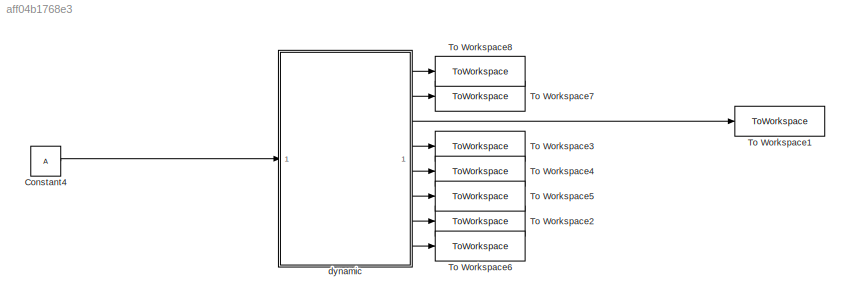
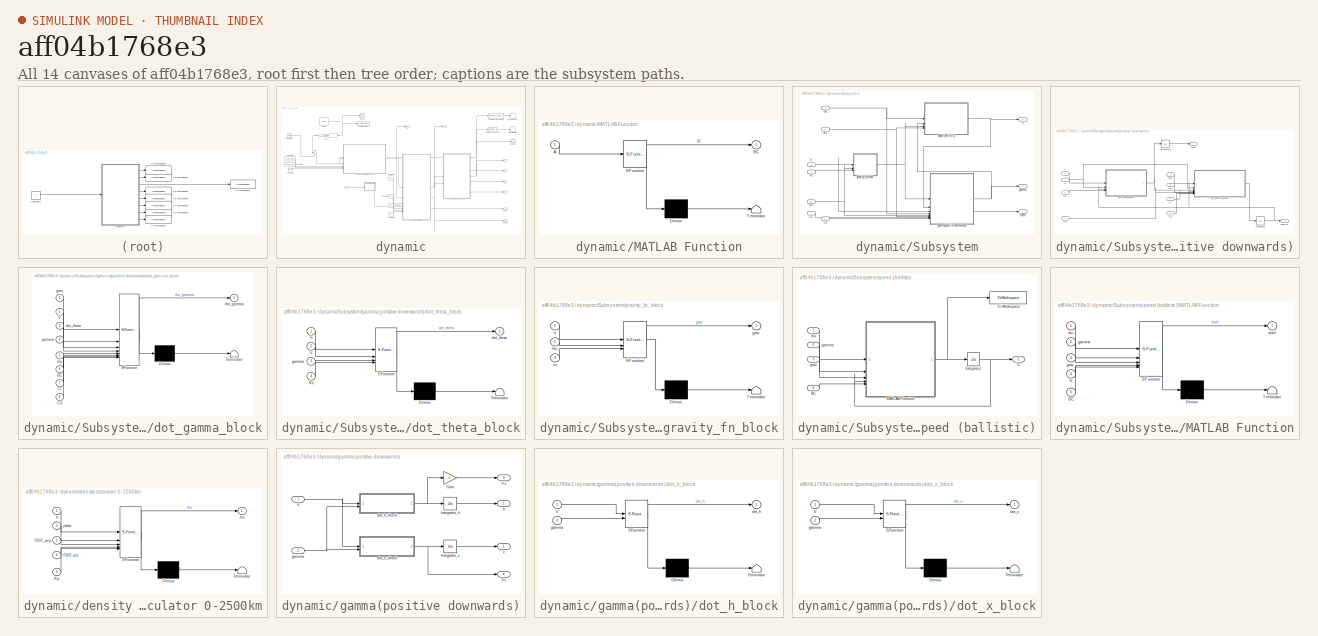
[diagram: thumbnail index - all 14 canvases of the model, root first then tree order]
MODEL slx_aff04b1768e3
KIND model
CONFIG AbsTol = auto
CONFIG EnableMultiTasking = off
CONFIG FixedStep = auto
CONFIG MaxStep = auto
CONFIG MinStep = auto
CONFIG RelTol = 1e-3
CONFIG SampleTimeConstraint = Unconstrained
CONFIG SolverName = VariableStepAuto
CONFIG StartTime = 0.0
CONFIG StopTime = 1e6
BLOCK [Constant] Constant4
  Value = A
BLOCK [ToWorkspace] To Workspace1
  FixptAsFi = on
  MaxDataPoints = inf
  SampleTime = -1
  Save2DSignal = 2-D array (concatenate along first dimension)
  VariableName = h
BLOCK [ToWorkspace] To Workspace2
  FixptAsFi = on
  MaxDataPoints = inf
  SampleTime = -1
  Save2DSignal = 2-D array (concatenate along first dimension)
  VariableName = theta
BLOCK [ToWorkspace] To Workspace3
  FixptAsFi = on
  MaxDataPoints = inf
  SampleTime = -1
  VariableName = x
BLOCK [ToWorkspace] To Workspace4
  FixptAsFi = on
  MaxDataPoints = inf
  SampleTime = -1
  Save2DSignal = 2-D array (concatenate along first dimension)
  VariableName = Vz
BLOCK [ToWorkspace] To Workspace5
  FixptAsFi = on
  MaxDataPoints = inf
  SampleTime = -1
  Save2DSignal = 2-D array (concatenate along first dimension)
  VariableName = Vx
BLOCK [ToWorkspace] To Workspace6
  FixptAsFi = on
  MaxDataPoints = inf
  SampleTime = -1
  Save2DSignal = 2-D array (concatenate along first dimension)
  VariableName = gamma
BLOCK [ToWorkspace] To Workspace7
  FixptAsFi = on
  MaxDataPoints = inf
  SampleTime = -1
  Save2DSignal = 2-D array (concatenate along first dimension)
  VariableName = V
BLOCK [ToWorkspace] To Workspace8
  FixptAsFi = on
  MaxDataPoints = inf
  SampleTime = -1
  Save2DSignal = 2-D array (concatenate along first dimension)
  VariableName = rho
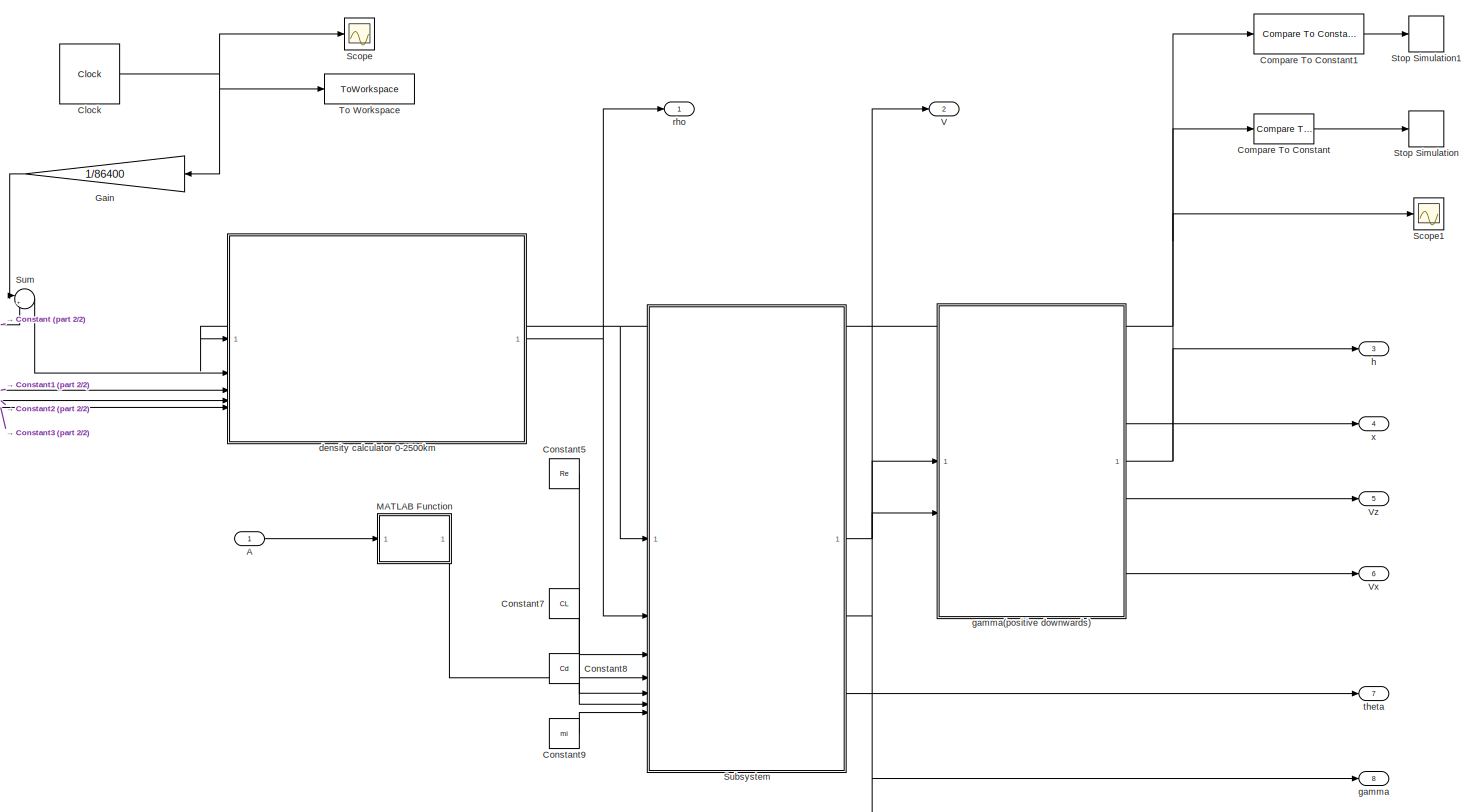
[diagram: dynamic - part 1/2, most of the canvas]
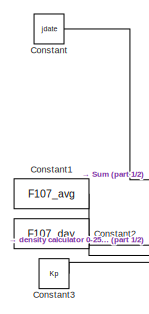
[diagram: dynamic - part 2/2, middle left region]
BLOCK [SubSystem] dynamic
BLOCK [Inport] dynamic/A
BLOCK [Clock] dynamic/Clock
  DisplayTime = on
BLOCK [Reference] dynamic/Compare To Constant  REF=simulink/Logic and Bit
Operations/Compare
To Constant
  SourceBlock = simulink/Logic and Bit\nOperations/Compare\nTo Constant
  SourceType = Compare To Constant
BLOCK [Reference] dynamic/Compare To Constant1  REF=simulink/Logic and Bit
Operations/Compare
To Constant
  SourceBlock = simulink/Logic and Bit\nOperations/Compare\nTo Constant
  SourceType = Compare To Constant
BLOCK [Constant] dynamic/Constant
  Value = jdate
BLOCK [Constant] dynamic/Constant1
  Value = F107_avg
BLOCK [Constant] dynamic/Constant2
  Value = F107_day
BLOCK [Constant] dynamic/Constant3
  Value = Kp
BLOCK [Constant] dynamic/Constant5
  Value = Re
BLOCK [Constant] dynamic/Constant7
  Value = CL
BLOCK [Constant] dynamic/Constant8
  Value = Cd
BLOCK [Constant] dynamic/Constant9
  Value = mi
BLOCK [Gain] dynamic/Gain
  Gain = 1/86400
  NameLocation = top
BLOCK [SubSystem] dynamic/MATLAB Function
  ErrorFcn = Stateflow.Translate.translate
  LibrarySourceBlock = simulink/User-Defined\nFunctions/MATLAB Function
  PermitHierarchicalResolution = ExplicitOnly
  SFBlockType = MATLAB Function
  TreatAsAtomicUnit = on
BLOCK [Demux] dynamic/MATLAB Function/ Demux 
  Outputs = 1
BLOCK [S-Function] dynamic/MATLAB Function/ SFunction 
  EnableBusSupport = on
  FunctionName = sf_sfun
  PortCounts = [1 2]
  SFcnIsStateOwnerBlock = off
  SFunctionDeploymentMode = off
  Tag = Stateflow S-Function 8
BLOCK [Terminator] dynamic/MATLAB Function/ Terminator 
BLOCK [Inport] dynamic/MATLAB Function/A
BLOCK [Outport] dynamic/MATLAB Function/BC
BLOCK [Scope] dynamic/Scope
  Floating = off
  NumInputPorts = 1
  ScopeSpecificationString = Simulink.scopes.TimeScopeBlockCfg('CurrentConfiguration', extmgr.ConfigurationSet(extmgr.Configuration('Core','General UI',true),extmgr.Configuration('Core','Source UI',true),extmgr.Configuration('Sources','WiredSimulink',true),extmgr.Configuration('Visuals','Time Domain',true,'SerializedDisplays',{struct('MinYLimReal','-1.25','MaxYLimReal','11.25','YLabelReal','','MinYLimMag','0.00000','MaxYLimMa...<+1311ch>
BLOCK [Scope] dynamic/Scope1
  Floating = off
  NumInputPorts = 1
  ScopeSpecificationString = Simulink.scopes.TimeScopeBlockCfg('CurrentConfiguration', extmgr.ConfigurationSet(extmgr.Configuration('Core','General UI',true),extmgr.Configuration('Core','Source UI',true),extmgr.Configuration('Sources','WiredSimulink',true,'DataLoggingVariableName','ScopeData1'),extmgr.Configuration('Visuals','Time Domain',true,'SerializedDisplays',{struct('MinYLimReal','164045.69091','MaxYLimReal','181859.815...<+1453ch>
BLOCK [Stop] dynamic/Stop Simulation
BLOCK [Stop] dynamic/Stop Simulation1
BLOCK [SubSystem] dynamic/Subsystem
BLOCK [Inport] dynamic/Subsystem/BC
  Port = 4
BLOCK [Inport] dynamic/Subsystem/CL
  Port = 5
BLOCK [Inport] dynamic/Subsystem/Cd
  Port = 6
BLOCK [Inport] dynamic/Subsystem/Re
  Port = 3
BLOCK [Outport] dynamic/Subsystem/V
BLOCK [Outport] dynamic/Subsystem/gamma
  Port = 2
BLOCK [SubSystem] dynamic/Subsystem/gamma(positive downwards)
BLOCK [Inport] dynamic/Subsystem/gamma(positive downwards)/BC
  Port = 6
BLOCK [Inport] dynamic/Subsystem/gamma(positive downwards)/CL
  Port = 7
BLOCK [Inport] dynamic/Subsystem/gamma(positive downwards)/Cd
  Port = 8
BLOCK [Integrator] dynamic/Subsystem/gamma(positive downwards)/Integrator
  AbsoluteTolerance = 1e-6
  InitialCondition = gamma0
  ZeroCross = off
BLOCK [Integrator] dynamic/Subsystem/gamma(positive downwards)/Integrator1
  InitialCondition = theta0
BLOCK [Inport] dynamic/Subsystem/gamma(positive downwards)/Re
  Port = 5
BLOCK [Inport] dynamic/Subsystem/gamma(positive downwards)/V
  Port = 2
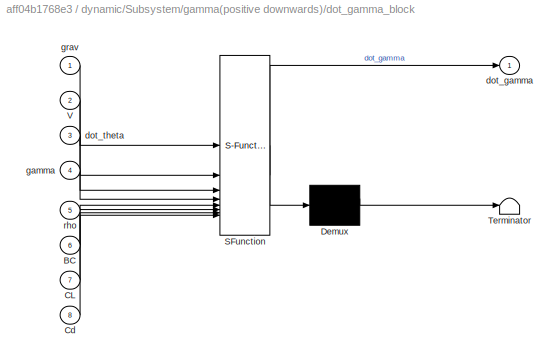
BLOCK [SubSystem] dynamic/Subsystem/gamma(positive downwards)/dot_gamma_block
  ErrorFcn = Stateflow.Translate.translate
  LibrarySourceBlock = simulink/User-Defined\nFunctions/MATLAB Function
  PermitHierarchicalResolution = ExplicitOnly
  SFBlockType = MATLAB Function
  TreatAsAtomicUnit = on
BLOCK [Demux] dynamic/Subsystem/gamma(positive downwards)/dot_gamma_block/ Demux 
  Outputs = 1
BLOCK [S-Function] dynamic/Subsystem/gamma(positive downwards)/dot_gamma_block/ SFunction 
  EnableBusSupport = on
  FunctionName = sf_sfun
  PortCounts = [8 2]
  SFcnIsStateOwnerBlock = off
  SFunctionDeploymentMode = off
  Tag = Stateflow S-Function 5
BLOCK [Terminator] dynamic/Subsystem/gamma(positive downwards)/dot_gamma_block/ Terminator 
BLOCK [Inport] dynamic/Subsystem/gamma(positive downwards)/dot_gamma_block/BC
  Port = 6
BLOCK [Inport] dynamic/Subsystem/gamma(positive downwards)/dot_gamma_block/CL
  Port = 7
BLOCK [Inport] dynamic/Subsystem/gamma(positive downwards)/dot_gamma_block/Cd
  Port = 8
BLOCK [Inport] dynamic/Subsystem/gamma(positive downwards)/dot_gamma_block/V
  Port = 2
BLOCK [Outport] dynamic/Subsystem/gamma(positive downwards)/dot_gamma_block/dot_gamma
BLOCK [Inport] dynamic/Subsystem/gamma(positive downwards)/dot_gamma_block/dot_theta
  Port = 3
BLOCK [Inport] dynamic/Subsystem/gamma(positive downwards)/dot_gamma_block/gamma
  Port = 4
BLOCK [Inport] dynamic/Subsystem/gamma(positive downwards)/dot_gamma_block/grav
BLOCK [Inport] dynamic/Subsystem/gamma(positive downwards)/dot_gamma_block/rho
  Port = 5
BLOCK [SubSystem] dynamic/Subsystem/gamma(positive downwards)/dot_theta_block
  ErrorFcn = Stateflow.Translate.translate
  LibrarySourceBlock = simulink/User-Defined\nFunctions/MATLAB Function
  PermitHierarchicalResolution = ExplicitOnly
  SFBlockType = MATLAB Function
  TreatAsAtomicUnit = on
BLOCK [Demux] dynamic/Subsystem/gamma(positive downwards)/dot_theta_block/ Demux 
  Outputs = 1
BLOCK [S-Function] dynamic/Subsystem/gamma(positive downwards)/dot_theta_block/ SFunction 
  EnableBusSupport = on
  FunctionName = sf_sfun
  PortCounts = [4 2]
  SFcnIsStateOwnerBlock = off
  SFunctionDeploymentMode = off
  Tag = Stateflow S-Function 4
BLOCK [Terminator] dynamic/Subsystem/gamma(positive downwards)/dot_theta_block/ Terminator 
BLOCK [Inport] dynamic/Subsystem/gamma(positive downwards)/dot_theta_block/Re
  Port = 4
BLOCK [Inport] dynamic/Subsystem/gamma(positive downwards)/dot_theta_block/V
  Port = 2
BLOCK [Outport] dynamic/Subsystem/gamma(positive downwards)/dot_theta_block/dot_theta
BLOCK [Inport] dynamic/Subsystem/gamma(positive downwards)/dot_theta_block/gamma
  Port = 3
BLOCK [Inport] dynamic/Subsystem/gamma(positive downwards)/dot_theta_block/h
BLOCK [Outport] dynamic/Subsystem/gamma(positive downwards)/gamma
BLOCK [Inport] dynamic/Subsystem/gamma(positive downwards)/grav
BLOCK [Inport] dynamic/Subsystem/gamma(positive downwards)/h
  Port = 3
BLOCK [Inport] dynamic/Subsystem/gamma(positive downwards)/rho
  Port = 4
BLOCK [Outport] dynamic/Subsystem/gamma(positive downwards)/theta
  Port = 2
BLOCK [SubSystem] dynamic/Subsystem/gravity_fn_block
  ErrorFcn = Stateflow.Translate.translate
  LibrarySourceBlock = simulink/User-Defined\nFunctions/MATLAB Function
  PermitHierarchicalResolution = ExplicitOnly
  SFBlockType = MATLAB Function
  TreatAsAtomicUnit = on
BLOCK [Demux] dynamic/Subsystem/gravity_fn_block/ Demux 
  Outputs = 1
BLOCK [S-Function] dynamic/Subsystem/gravity_fn_block/ SFunction 
  EnableBusSupport = on
  FunctionName = sf_sfun
  PortCounts = [3 2]
  SFcnIsStateOwnerBlock = off
  SFunctionDeploymentMode = off
  Tag = Stateflow S-Function 1
BLOCK [Terminator] dynamic/Subsystem/gravity_fn_block/ Terminator 
BLOCK [Inport] dynamic/Subsystem/gravity_fn_block/Re
  Port = 2
BLOCK [Outport] dynamic/Subsystem/gravity_fn_block/grav
BLOCK [Inport] dynamic/Subsystem/gravity_fn_block/h
BLOCK [Inport] dynamic/Subsystem/gravity_fn_block/mi
  Port = 3
BLOCK [Inport] dynamic/Subsystem/h
BLOCK [Inport] dynamic/Subsystem/mi
  Port = 7
BLOCK [Inport] dynamic/Subsystem/rho
  Port = 2
BLOCK [SubSystem] dynamic/Subsystem/speed (ballistic)
BLOCK [Inport] dynamic/Subsystem/speed (ballistic)/BC
  Port = 4
BLOCK [Integrator] dynamic/Subsystem/speed (ballistic)/Integrator
  InitialCondition = V0
BLOCK [SubSystem] dynamic/Subsystem/speed (ballistic)/MATLAB Function
  ErrorFcn = Stateflow.Translate.translate
  LibrarySourceBlock = simulink/User-Defined\nFunctions/MATLAB Function
  PermitHierarchicalResolution = ExplicitOnly
  SFBlockType = MATLAB Function
  TreatAsAtomicUnit = on
BLOCK [Demux] dynamic/Subsystem/speed (ballistic)/MATLAB Function/ Demux 
  Outputs = 1
BLOCK [S-Function] dynamic/Subsystem/speed (ballistic)/MATLAB Function/ SFunction 
  EnableBusSupport = on
  FunctionName = sf_sfun
  PortCounts = [5 2]
  SFcnIsStateOwnerBlock = off
  SFunctionDeploymentMode = off
  Tag = Stateflow S-Function 3
BLOCK [Terminator] dynamic/Subsystem/speed (ballistic)/MATLAB Function/ Terminator 
BLOCK [Inport] dynamic/Subsystem/speed (ballistic)/MATLAB Function/BC
  Port = 5
BLOCK [Inport] dynamic/Subsystem/speed (ballistic)/MATLAB Function/V
  Port = 4
BLOCK [Outport] dynamic/Subsystem/speed (ballistic)/MATLAB Function/dotV
BLOCK [Inport] dynamic/Subsystem/speed (ballistic)/MATLAB Function/gamma
  Port = 2
BLOCK [Inport] dynamic/Subsystem/speed (ballistic)/MATLAB Function/grav
  Port = 3
BLOCK [Inport] dynamic/Subsystem/speed (ballistic)/MATLAB Function/rho
BLOCK [ToWorkspace] dynamic/Subsystem/speed (ballistic)/To Workspace
  FixptAsFi = on
  MaxDataPoints = inf
  SampleTime = -1
  Save2DSignal = 2-D array (concatenate along first dimension)
  VariableName = dotV
BLOCK [Outport] dynamic/Subsystem/speed (ballistic)/V
BLOCK [Inport] dynamic/Subsystem/speed (ballistic)/gamma
  Port = 2
BLOCK [Inport] dynamic/Subsystem/speed (ballistic)/grav
  Port = 3
BLOCK [Inport] dynamic/Subsystem/speed (ballistic)/rho
BLOCK [Outport] dynamic/Subsystem/theta
  Port = 3
BLOCK [Sum] dynamic/Sum
  Inputs = |++
BLOCK [ToWorkspace] dynamic/To Workspace
  FixptAsFi = on
  MaxDataPoints = inf
  SampleTime = -1
  Save2DSignal = 2-D array (concatenate along first dimension)
  VariableName = time
BLOCK [Outport] dynamic/V
  Port = 2
BLOCK [Outport] dynamic/Vx
  Port = 6
BLOCK [Outport] dynamic/Vz
  Port = 5
BLOCK [SubSystem] dynamic/density calculator 0-2500km
  ErrorFcn = Stateflow.Translate.translate
  LibrarySourceBlock = simulink/User-Defined\nFunctions/MATLAB Function
  PermitHierarchicalResolution = ExplicitOnly
  SFBlockType = MATLAB Function
  TreatAsAtomicUnit = on
BLOCK [Demux] dynamic/density calculator 0-2500km/ Demux 
  Outputs = 1
BLOCK [S-Function] dynamic/density calculator 0-2500km/ SFunction 
  EnableBusSupport = on
  FunctionName = sf_sfun
  PortCounts = [5 2]
  SFcnIsStateOwnerBlock = off
  SFunctionDeploymentMode = off
  Tag = Stateflow S-Function 2
BLOCK [Terminator] dynamic/density calculator 0-2500km/ Terminator 
BLOCK [Inport] dynamic/density calculator 0-2500km/F107_act
  Port = 4
BLOCK [Inport] dynamic/density calculator 0-2500km/F107_avg
  Port = 3
BLOCK [Inport] dynamic/density calculator 0-2500km/Kp
  Port = 5
BLOCK [Inport] dynamic/density calculator 0-2500km/h
BLOCK [Inport] dynamic/density calculator 0-2500km/jdate
  Port = 2
BLOCK [Outport] dynamic/density calculator 0-2500km/rho
BLOCK [Outport] dynamic/gamma
  Port = 8
BLOCK [SubSystem] dynamic/gamma(positive downwards)
BLOCK [Gain] dynamic/gamma(positive downwards)/Gain
  Gain = -1
BLOCK [Integrator] dynamic/gamma(positive downwards)/Integrator_h
  InitialCondition = h0
BLOCK [Integrator] dynamic/gamma(positive downwards)/Integrator_x
  InitialCondition = x0
BLOCK [Inport] dynamic/gamma(positive downwards)/V
BLOCK [Outport] dynamic/gamma(positive downwards)/Vx
  Port = 4
BLOCK [Outport] dynamic/gamma(positive downwards)/Vz
  Port = 3
BLOCK [SubSystem] dynamic/gamma(positive downwards)/dot_h_block
  ErrorFcn = Stateflow.Translate.translate
  LibrarySourceBlock = simulink/User-Defined\nFunctions/MATLAB Function
  PermitHierarchicalResolution = ExplicitOnly
  SFBlockType = MATLAB Function
  TreatAsAtomicUnit = on
BLOCK [Demux] dynamic/gamma(positive downwards)/dot_h_block/ Demux 
  Outputs = 1
BLOCK [S-Function] dynamic/gamma(positive downwards)/dot_h_block/ SFunction 
  EnableBusSupport = on
  FunctionName = sf_sfun
  PortCounts = [2 2]
  SFcnIsStateOwnerBlock = off
  SFunctionDeploymentMode = off
  Tag = Stateflow S-Function 6
BLOCK [Terminator] dynamic/gamma(positive downwards)/dot_h_block/ Terminator 
BLOCK [Inport] dynamic/gamma(positive downwards)/dot_h_block/V
BLOCK [Outport] dynamic/gamma(positive downwards)/dot_h_block/dot_h
BLOCK [Inport] dynamic/gamma(positive downwards)/dot_h_block/gamma
  Port = 2
BLOCK [SubSystem] dynamic/gamma(positive downwards)/dot_x_block
  ErrorFcn = Stateflow.Translate.translate
  LibrarySourceBlock = simulink/User-Defined\nFunctions/MATLAB Function
  PermitHierarchicalResolution = ExplicitOnly
  SFBlockType = MATLAB Function
  TreatAsAtomicUnit = on
BLOCK [Demux] dynamic/gamma(positive downwards)/dot_x_block/ Demux 
  Outputs = 1
BLOCK [S-Function] dynamic/gamma(positive downwards)/dot_x_block/ SFunction 
  EnableBusSupport = on
  FunctionName = sf_sfun
  PortCounts = [2 2]
  SFcnIsStateOwnerBlock = off
  SFunctionDeploymentMode = off
  Tag = Stateflow S-Function 7
BLOCK [Terminator] dynamic/gamma(positive downwards)/dot_x_block/ Terminator 
BLOCK [Inport] dynamic/gamma(positive downwards)/dot_x_block/V
BLOCK [Outport] dynamic/gamma(positive downwards)/dot_x_block/dot_x
BLOCK [Inport] dynamic/gamma(positive downwards)/dot_x_block/gamma
  Port = 2
BLOCK [Inport] dynamic/gamma(positive downwards)/gamma
  Port = 2
BLOCK [Outport] dynamic/gamma(positive downwards)/h
BLOCK [Outport] dynamic/gamma(positive downwards)/x
  Port = 2
BLOCK [Outport] dynamic/h
  Port = 3
BLOCK [Outport] dynamic/rho
BLOCK [Outport] dynamic/theta
  Port = 7
BLOCK [Outport] dynamic/x
  Port = 4
LINE Constant4:1 -> dynamic:1
LINE dynamic/A:1 -> dynamic/MATLAB Function:1
NET dynamic/Clock:1 -> dynamic/Gain:1, dynamic/Scope:1, dynamic/To Workspace:1
LINE dynamic/Compare To Constant1:1 -> dynamic/Stop Simulation1:1
LINE dynamic/Compare To Constant:1 -> dynamic/Stop Simulation:1
LINE dynamic/Constant1:1 -> dynamic/density calculator 0-2500km:3
LINE dynamic/Constant2:1 -> dynamic/density calculator 0-2500km:4
LINE dynamic/Constant3:1 -> dynamic/density calculator 0-2500km:5
LINE dynamic/Constant5:1 -> dynamic/Subsystem:3
LINE dynamic/Constant7:1 -> dynamic/Subsystem:5
LINE dynamic/Constant8:1 -> dynamic/Subsystem:6
LINE dynamic/Constant9:1 -> dynamic/Subsystem:7
LINE dynamic/Constant:1 -> dynamic/Sum:2
LINE dynamic/Gain:1 -> dynamic/Sum:1
LINE dynamic/MATLAB Function:1 -> dynamic/Subsystem:4
NET dynamic/Subsystem/BC:1 -> dynamic/Subsystem/gamma(positive downwards):6, dynamic/Subsystem/speed (ballistic):4
LINE dynamic/Subsystem/CL:1 -> dynamic/Subsystem/gamma(positive downwards):7
LINE dynamic/Subsystem/Cd:1 -> dynamic/Subsystem/gamma(positive downwards):8
NET dynamic/Subsystem/Re:1 -> dynamic/Subsystem/gamma(positive downwards):5, dynamic/Subsystem/gravity_fn_block:2
LINE dynamic/Subsystem/gamma(positive downwards)/BC:1 -> dynamic/Subsystem/gamma(positive downwards)/dot_gamma_block:6
LINE dynamic/Subsystem/gamma(positive downwards)/CL:1 -> dynamic/Subsystem/gamma(positive downwards)/dot_gamma_block:7
LINE dynamic/Subsystem/gamma(positive downwards)/Cd:1 -> dynamic/Subsystem/gamma(positive downwards)/dot_gamma_block:8
LINE dynamic/Subsystem/gamma(positive downwards)/Integrator1:1 -> dynamic/Subsystem/gamma(positive downwards)/theta:1
NET dynamic/Subsystem/gamma(positive downwards)/Integrator:1 -> dynamic/Subsystem/gamma(positive downwards)/dot_gamma_block:4, dynamic/Subsystem/gamma(positive downwards)/dot_theta_block:3, dynamic/Subsystem/gamma(positive downwards)/gamma:1
LINE dynamic/Subsystem/gamma(positive downwards)/Re:1 -> dynamic/Subsystem/gamma(positive downwards)/dot_theta_block:4
NET dynamic/Subsystem/gamma(positive downwards)/V:1 -> dynamic/Subsystem/gamma(positive downwards)/dot_gamma_block:2, dynamic/Subsystem/gamma(positive downwards)/dot_theta_block:2
LINE dynamic/Subsystem/gamma(positive downwards)/dot_gamma_block:1 -> dynamic/Subsystem/gamma(positive downwards)/Integrator:1
NET dynamic/Subsystem/gamma(positive downwards)/dot_theta_block:1 -> dynamic/Subsystem/gamma(positive downwards)/Integrator1:1, dynamic/Subsystem/gamma(positive downwards)/dot_gamma_block:3
LINE dynamic/Subsystem/gamma(positive downwards)/grav:1 -> dynamic/Subsystem/gamma(positive downwards)/dot_gamma_block:1
LINE dynamic/Subsystem/gamma(positive downwards)/h:1 -> dynamic/Subsystem/gamma(positive downwards)/dot_theta_block:1
LINE dynamic/Subsystem/gamma(positive downwards)/rho:1 -> dynamic/Subsystem/gamma(positive downwards)/dot_gamma_block:5
NET dynamic/Subsystem/gamma(positive downwards):1 -> dynamic/Subsystem/gamma:1, dynamic/Subsystem/speed (ballistic):2
LINE dynamic/Subsystem/gamma(positive downwards):2 -> dynamic/Subsystem/theta:1
NET dynamic/Subsystem/gravity_fn_block:1 -> dynamic/Subsystem/gamma(positive downwards):1, dynamic/Subsystem/speed (ballistic):3
NET dynamic/Subsystem/h:1 -> dynamic/Subsystem/gamma(positive downwards):3, dynamic/Subsystem/gravity_fn_block:1
LINE dynamic/Subsystem/mi:1 -> dynamic/Subsystem/gravity_fn_block:3
NET dynamic/Subsystem/rho:1 -> dynamic/Subsystem/gamma(positive downwards):4, dynamic/Subsystem/speed (ballistic):1
LINE dynamic/Subsystem/speed (ballistic)/BC:1 -> dynamic/Subsystem/speed (ballistic)/MATLAB Function:5
NET dynamic/Subsystem/speed (ballistic)/Integrator:1 -> dynamic/Subsystem/speed (ballistic)/MATLAB Function:4, dynamic/Subsystem/speed (ballistic)/V:1
NET dynamic/Subsystem/speed (ballistic)/MATLAB Function:1 -> dynamic/Subsystem/speed (ballistic)/Integrator:1, dynamic/Subsystem/speed (ballistic)/To Workspace:1
LINE dynamic/Subsystem/speed (ballistic)/gamma:1 -> dynamic/Subsystem/speed (ballistic)/MATLAB Function:2
LINE dynamic/Subsystem/speed (ballistic)/grav:1 -> dynamic/Subsystem/speed (ballistic)/MATLAB Function:3
LINE dynamic/Subsystem/speed (ballistic)/rho:1 -> dynamic/Subsystem/speed (ballistic)/MATLAB Function:1
NET dynamic/Subsystem/speed (ballistic):1 -> dynamic/Subsystem/V:1, dynamic/Subsystem/gamma(positive downwards):2
NET dynamic/Subsystem:1 -> dynamic/V:1, dynamic/gamma(positive downwards):1
NET dynamic/Subsystem:2 -> dynamic/gamma(positive downwards):2, dynamic/gamma:1
LINE dynamic/Subsystem:3 -> dynamic/theta:1
LINE dynamic/Sum:1 -> dynamic/density calculator 0-2500km:2
NET dynamic/density calculator 0-2500km:1 -> dynamic/Subsystem:2, dynamic/rho:1
LINE dynamic/gamma(positive downwards)/Gain:1 -> dynamic/gamma(positive downwards)/Vz:1
LINE dynamic/gamma(positive downwards)/Integrator_h:1 -> dynamic/gamma(positive downwards)/h:1
LINE dynamic/gamma(positive downwards)/Integrator_x:1 -> dynamic/gamma(positive downwards)/x:1
NET dynamic/gamma(positive downwards)/V:1 -> dynamic/gamma(positive downwards)/dot_h_block:1, dynamic/gamma(positive downwards)/dot_x_block:1
NET dynamic/gamma(positive downwards)/dot_h_block:1 -> dynamic/gamma(positive downwards)/Gain:1, dynamic/gamma(positive downwards)/Integrator_h:1
NET dynamic/gamma(positive downwards)/dot_x_block:1 -> dynamic/gamma(positive downwards)/Integrator_x:1, dynamic/gamma(positive downwards)/Vx:1
NET dynamic/gamma(positive downwards)/gamma:1 -> dynamic/gamma(positive downwards)/dot_h_block:2, dynamic/gamma(positive downwards)/dot_x_block:2
NET dynamic/gamma(positive downwards):1 -> dynamic/Compare To Constant1:1, dynamic/Compare To Constant:1, dynamic/Scope1:1, dynamic/Subsystem:1, dynamic/density calculator 0-2500km:1, dynamic/h:1
LINE dynamic/gamma(positive downwards):2 -> dynamic/x:1
LINE dynamic/gamma(positive downwards):3 -> dynamic/Vz:1
LINE dynamic/gamma(positive downwards):4 -> dynamic/Vx:1
LINE dynamic:1 -> To Workspace8:1
LINE dynamic:2 -> To Workspace7:1
LINE dynamic:3 -> To Workspace1:1
LINE dynamic:4 -> To Workspace3:1
LINE dynamic:5 -> To Workspace4:1
LINE dynamic:6 -> To Workspace5:1
LINE dynamic:7 -> To Workspace2:1
LINE dynamic:8 -> To Workspace6:1
note: NET lines group one-source signal fan-out (src -> all destinations, sorted); 1:1 wires keep LINE
CHART dynamic/Subsystem/gravity_fn_block states=1 transitions=1
  STATE_LABEL 'eML_blk_kernel()'
  STATE_LABEL 'SCRIPT:\nfunction grav = gravity(h,Re,mi)\n\ngrav = mi*1e9 / (Re+h)^2;\nend\n\n'
CHART dynamic/density calculator 0-2500km states=1 transitions=1
  STATE_LABEL 'eML_blk_kernel()'
  STATE_LABEL 'SCRIPT:\nfunction rho = unirho(h,jdate,F107_avg,F107_act,Kp)\n    SH = 8397.5; \n    rho = 1.225 * exp(- h/(SH));    % my Python model, using SH = 8.43 and rho0=1.221 as constant\nend\n% %This function combines Jacchia J71 and Exponential Atmosphere for %calculating density in the band [0;2500] km\n% %A transition function should be introduced to avoid discontinuities\n% function rho = unirho(h,jdate,F10...<+3608ch>'
CHART dynamic/Subsystem/speed (ballistic)/MATLAB Function states=1 transitions=1
  STATE_LABEL 'eML_blk_kernel()'
  STATE_LABEL 'SCRIPT:\nfunction dotV = dvdt(rho,gamma,grav,V,BC)\ndotV = -0.5*rho*V^2/BC + grav*sin(gamma);\nend\n\n\n'
CHART dynamic/Subsystem/gamma(positive downwards)/dot_theta_block states=1 transitions=1
  STATE_LABEL 'eML_blk_kernel()'
  STATE_LABEL 'SCRIPT:\nfunction dot_theta = dthetadt(h,V,gamma,Re)\n\n\ndot_theta = V*cos(gamma)/(Re+h); \n\nend\n\n'
CHART dynamic/Subsystem/gamma(positive downwards)/dot_gamma_block states=1 transitions=1
  STATE_LABEL 'eML_blk_kernel()'
  STATE_LABEL 'SCRIPT:\nfunction dot_gamma = dgammadt(grav,V,dot_theta,gamma,rho,BC,CL,Cd)\n dot_gamma = grav / V * cos(gamma) - dot_theta - 0.5 * rho/BC * CL / Cd*V; \nend\n\n'
CHART dynamic/gamma(positive downwards)/dot_h_block states=1 transitions=1
  STATE_LABEL 'eML_blk_kernel()'
  STATE_LABEL 'SCRIPT:\nfunction dot_h = dhdt(V,gamma)\ndot_h = -V*sin(gamma);\nend\n\n'
CHART dynamic/gamma(positive downwards)/dot_x_block states=1 transitions=1
  STATE_LABEL 'eML_blk_kernel()'
  STATE_LABEL 'SCRIPT:\nfunction dot_x = dxdt(V,gamma)\ndot_x = -V*cos(gamma);\nend\n\n'
CHART dynamic/MATLAB Function states=1 transitions=1
  STATE_LABEL 'eML_blk_kernel()'
  STATE_LABEL 'SCRIPT:\nfunction BC = ballistic(A)\n         m = 6; \n         Cd = 2.2; \n         BC = m / Cd / A;\nend\n\n'
CHART  states=0 transitions=0
CHART  states=0 transitions=0
CHART  states=0 transitions=0
CHART  states=0 transitions=0
CHART  states=0 transitions=0
CHART  states=0 transitions=0
CHART  states=0 transitions=0
CHART  states=0 transitions=0
